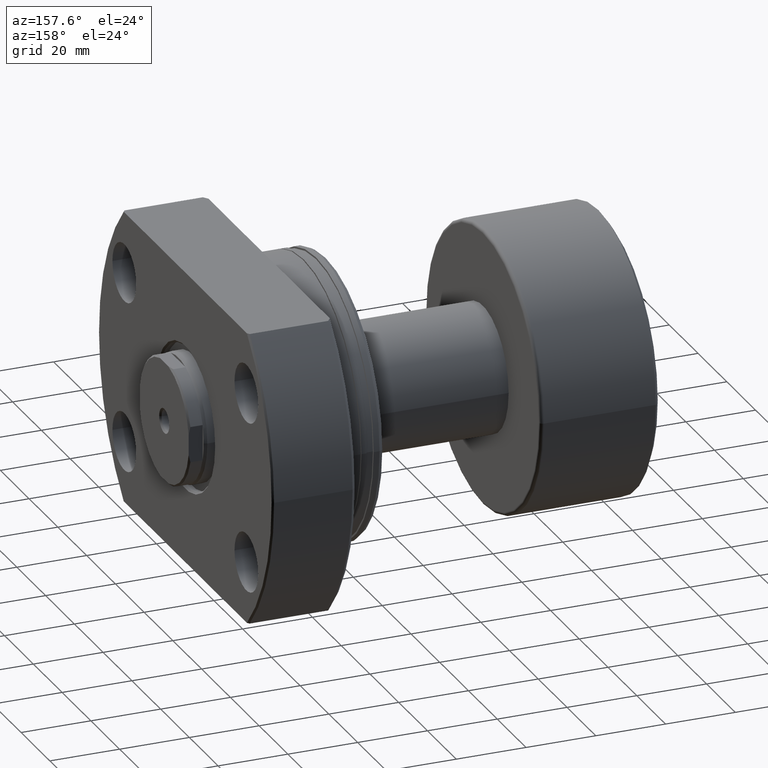
[diagram: clean part render]
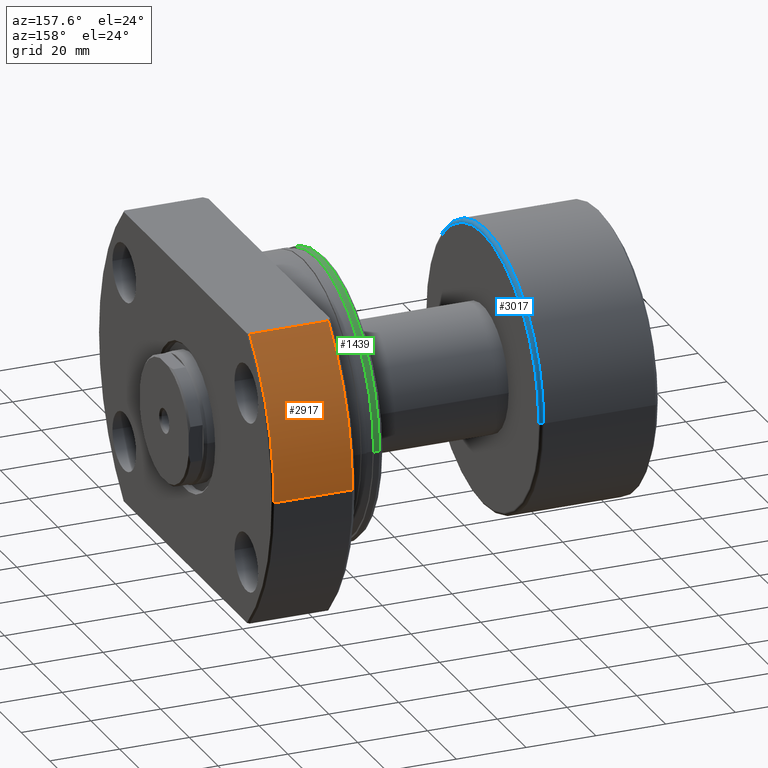
[diagram: same view with three faces highlighted in distinct colors, each labeled with its STEP entity id]
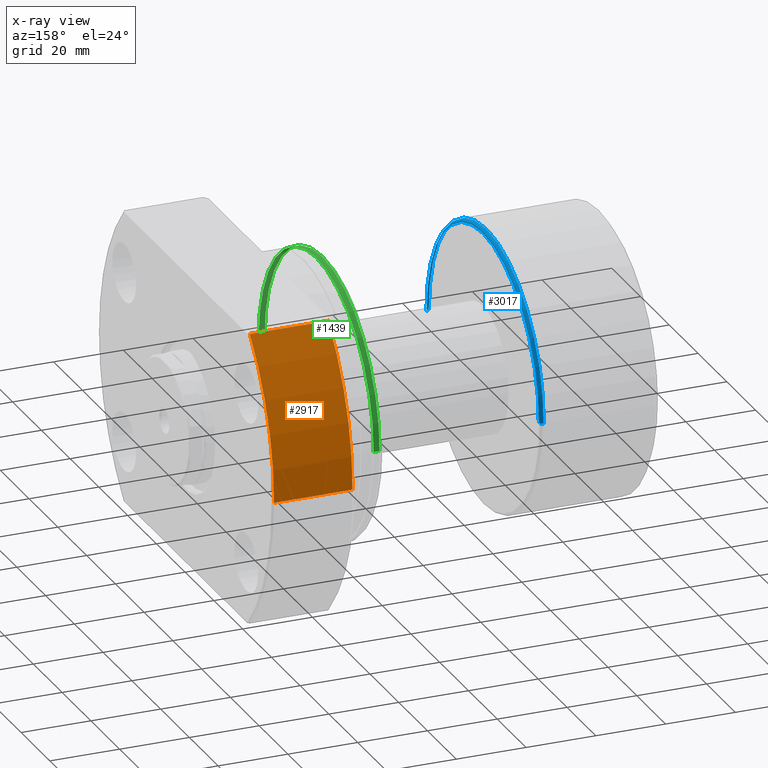
[diagram: x-ray of the same camera — body ghosted, the three highlighted faces saturated]
A machine part, auxiliary view with three faces highlighted in distinct colors.
The next image is the same camera in x-ray (body ghosted, the three faces saturated) — at least one of them is partly hidden behind the body in this view.
Their STEP definitions:

[orange] entity #2917 — the highlighted cylindrical surface (partial cylindrical patch) has radius 60.5 mm, axis along (1, 0, 0).
#43 = CARTESIAN_POINT ( 'NONE',  ( -4.857225732735059864E-13, 43.54595273960703139, 42.00000000000000000 ) ) ;
#77 = ORIENTED_EDGE ( 'NONE', *, *, #2205, .T. ) ;
#198 = VERTEX_POINT ( 'NONE', #1847 ) ;
#228 = AXIS2_PLACEMENT_3D ( 'NONE', #2337, #370, #3147 ) ;
#285 = CARTESIAN_POINT ( 'NONE',  ( 40.20000000000000284, 60.49999999999991473, 0.000000000000000000 ) ) ;
#330 = CIRCLE ( 'NONE', #483, 60.49999999999991473 ) ;
#370 = DIRECTION ( 'NONE',  ( 1.000000000000000000, 4.782824563834189405E-17, -0.000000000000000000 ) ) ;
#453 = DIRECTION ( 'NONE',  ( 0.000000000000000000, 1.000000000000000000, 0.000000000000000000 ) ) ;
#477 = DIRECTION ( 'NONE',  ( 1.000000000000000000, -2.886466111666351885E-14, -0.000000000000000000 ) ) ;
#483 = AXIS2_PLACEMENT_3D ( 'NONE', #1478, #1982, #453 ) ;
#601 = ORIENTED_EDGE ( 'NONE', *, *, #2960, .F. ) ;
#861 = EDGE_CURVE ( 'NONE', #2720, #198, #888, .T. ) ;
#888 = CIRCLE ( 'NONE', #2701, 60.49999999999991473 ) ;
#893 = VERTEX_POINT ( 'NONE', #1412 ) ;
#1089 = CYLINDRICAL_SURFACE ( 'NONE', #228, 60.49999999999991473 ) ;
#1143 = FACE_OUTER_BOUND ( 'NONE', #2264, .T. ) ;
#1361 = ORIENTED_EDGE ( 'NONE', *, *, #2209, .F. ) ;
#1412 = CARTESIAN_POINT ( 'NONE',  ( 39.70000000000009521, 60.49999999999991473, 0.000000000000000000 ) ) ;
#1478 = CARTESIAN_POINT ( 'NONE',  ( 39.70000000000009521, 1.898781351842177780E-15, 0.000000000000000000 ) ) ;
#1505 = LINE ( 'NONE', #285, #2700 ) ;
#1590 = CARTESIAN_POINT ( 'NONE',  ( 39.70000000000009521, 43.54595273960588742, 42.00000000000000000 ) ) ;
#1847 = CARTESIAN_POINT ( 'NONE',  ( 17.19999999999998153, 43.54595273960653401, 42.00000000000000000 ) ) ;
#1979 = VERTEX_POINT ( 'NONE', #1590 ) ;
#1982 = DIRECTION ( 'NONE',  ( 1.000000000000000000, 4.782824563834189405E-17, -0.000000000000000000 ) ) ;
#2100 = VECTOR ( 'NONE', #477, 1000.000000000000000 ) ;
#2205 = EDGE_CURVE ( 'NONE', #198, #1979, #2693, .T. ) ;
#2209 = EDGE_CURVE ( 'NONE', #2720, #893, #1505, .T. ) ;
#2264 = EDGE_LOOP ( 'NONE', ( #1361, #2663, #77, #601 ) ) ;
#2337 = CARTESIAN_POINT ( 'NONE',  ( 40.20000000000000284, 1.922695474661343877E-15, 0.000000000000000000 ) ) ;
#2431 = DIRECTION ( 'NONE',  ( -5.734623061080362048E-17, 1.000000000000000000, 0.000000000000000000 ) ) ;
#2494 = DIRECTION ( 'NONE',  ( 1.000000000000000000, 4.782824563834189405E-17, -0.000000000000000000 ) ) ;
#2663 = ORIENTED_EDGE ( 'NONE', *, *, #861, .T. ) ;
#2693 = LINE ( 'NONE', #43, #2100 ) ;
#2700 = VECTOR ( 'NONE', #2494, 1000.000000000000000 ) ;
#2701 = AXIS2_PLACEMENT_3D ( 'NONE', #2851, #2891, #2431 ) ;
#2720 = VERTEX_POINT ( 'NONE', #2997 ) ;
#2851 = CARTESIAN_POINT ( 'NONE',  ( 17.19999999999998508, 8.226458249794798825E-16, 0.000000000000000000 ) ) ;
#2891 = DIRECTION ( 'NONE',  ( 1.000000000000000000, 4.782824563834189405E-17, -0.000000000000000000 ) ) ;
#2917 = ADVANCED_FACE ( 'NONE', ( #1143 ), #1089, .T. ) ;
#2960 = EDGE_CURVE ( 'NONE', #893, #1979, #330, .T. ) ;
#2997 = CARTESIAN_POINT ( 'NONE',  ( 17.19999999999998153, 60.49999999999991473, 0.000000000000000000 ) ) ;
#3147 = DIRECTION ( 'NONE',  ( 0.000000000000000000, 1.000000000000000000, 0.000000000000000000 ) ) ;

[blue] entity #3017 — the highlighted toroidal blend (fillet) surface has major radius 39 mm and minor (blend) radius 1 mm.
#98 = EDGE_CURVE ( 'NONE', #3018, #1945, #1075, .T. ) ;
#120 = DIRECTION ( 'NONE',  ( 0.000000000000000000, 0.000000000000000000, -1.000000000000000000 ) ) ;
#542 = EDGE_CURVE ( 'NONE', #1906, #2793, #1080, .T. ) ;
#696 = CARTESIAN_POINT ( 'NONE',  ( 33.70000000000000284, 0.000000000000000000, 0.000000000000000000 ) ) ;
#729 = DIRECTION ( 'NONE',  ( 1.069542322069065801E-17, -1.000000000000000000, 0.000000000000000000 ) ) ;
#787 = EDGE_LOOP ( 'NONE', ( #2735, #1468, #1711, #1402 ) ) ;
#915 = DIRECTION ( 'NONE',  ( -1.000000000000000000, -1.069542322069065801E-17, -0.000000000000000000 ) ) ;
#1039 = EDGE_CURVE ( 'NONE', #2793, #1945, #1087, .T. ) ;
#1075 = CIRCLE ( 'NONE', #3059, 1.000000000000000888 ) ;
#1080 = CIRCLE ( 'NONE', #1946, 1.000000000000000888 ) ;
#1087 = CIRCLE ( 'NONE', #2610, 39.99999999999999289 ) ;
#1216 = DIRECTION ( 'NONE',  ( -1.000000000000000000, -1.069542322069065801E-17, -0.000000000000000000 ) ) ;
#1248 = AXIS2_PLACEMENT_3D ( 'NONE', #3081, #1272, #2542 ) ;
#1255 = EDGE_CURVE ( 'NONE', #1906, #3018, #1625, .T. ) ;
#1272 = DIRECTION ( 'NONE',  ( -1.000000000000000000, -1.069542322069065801E-17, -0.000000000000000000 ) ) ;
#1321 = CARTESIAN_POINT ( 'NONE',  ( 33.70000000000000284, -39.99999999999999289, 0.000000000000000000 ) ) ;
#1402 = ORIENTED_EDGE ( 'NONE', *, *, #542, .F. ) ;
#1468 = ORIENTED_EDGE ( 'NONE', *, *, #98, .T. ) ;
#1625 = CIRCLE ( 'NONE', #1248, 38.99999999999999289 ) ;
#1711 = ORIENTED_EDGE ( 'NONE', *, *, #1039, .F. ) ;
#1871 = DIRECTION ( 'NONE',  ( 0.000000000000000000, -1.000000000000000000, -1.224646799147357151E-16 ) ) ;
#1906 = VERTEX_POINT ( 'NONE', #2615 ) ;
#1945 = VERTEX_POINT ( 'NONE', #3100 ) ;
#1946 = AXIS2_PLACEMENT_3D ( 'NONE', #2772, #120, #3090 ) ;
#1998 = FACE_OUTER_BOUND ( 'NONE', #787, .T. ) ;
#2356 = TOROIDAL_SURFACE ( 'NONE', #2760, 38.99999999999999289, 1.000000000000000888 ) ;
#2468 = CARTESIAN_POINT ( 'NONE',  ( 33.70000000000000284, 3.604357625372751759E-16, 0.000000000000000000 ) ) ;
#2542 = DIRECTION ( 'NONE',  ( 0.000000000000000000, -1.000000000000000000, 0.000000000000000000 ) ) ;
#2610 = AXIS2_PLACEMENT_3D ( 'NONE', #2468, #1216, #2681 ) ;
#2615 = CARTESIAN_POINT ( 'NONE',  ( 34.70000000000000284, -38.99999999999999289, 0.000000000000000000 ) ) ;
#2626 = DIRECTION ( 'NONE',  ( 1.309811581274509052E-33, -1.224646799147353207E-16, 1.000000000000000000 ) ) ;
#2641 = CARTESIAN_POINT ( 'NONE',  ( 34.70000000000000284, 38.99999999999999289, 4.837354856632044663E-15 ) ) ;
#2681 = DIRECTION ( 'NONE',  ( 0.000000000000000000, -1.000000000000000000, 0.000000000000000000 ) ) ;
#2735 = ORIENTED_EDGE ( 'NONE', *, *, #1255, .T. ) ;
#2760 = AXIS2_PLACEMENT_3D ( 'NONE', #696, #915, #729 ) ;
#2772 = CARTESIAN_POINT ( 'NONE',  ( 33.70000000000000284, -38.99999999999999289, 0.000000000000000000 ) ) ;
#2793 = VERTEX_POINT ( 'NONE', #1321 ) ;
#3017 = ADVANCED_FACE ( 'NONE', ( #1998 ), #2356, .T. ) ;
#3018 = VERTEX_POINT ( 'NONE', #2641 ) ;
#3059 = AXIS2_PLACEMENT_3D ( 'NONE', #3156, #2626, #1871 ) ;
#3081 = CARTESIAN_POINT ( 'NONE',  ( 34.70000000000000284, 3.711311857579658694E-16, 0.000000000000000000 ) ) ;
#3090 = DIRECTION ( 'NONE',  ( -1.000000000000000000, 0.000000000000000000, 0.000000000000000000 ) ) ;
#3100 = CARTESIAN_POINT ( 'NONE',  ( 33.70000000000000284, 39.99999999999999289, 4.898587196589412237E-15 ) ) ;
#3156 = CARTESIAN_POINT ( 'NONE',  ( 33.70000000000000284, 38.99999999999999289, 4.776122516674677089E-15 ) ) ;

[green] entity #1439 — the highlighted cylindrical surface (partial cylindrical patch) has radius 40 mm, axis along (1, 0, 0).
#32 = DIRECTION ( 'NONE',  ( 1.000000000000000000, 4.782824563834189405E-17, -0.000000000000000000 ) ) ;
#151 = LINE ( 'NONE', #1305, #427 ) ;
#240 = LINE ( 'NONE', #2239, #3065 ) ;
#427 = VECTOR ( 'NONE', #3023, 1000.000000000000000 ) ;
#541 = CARTESIAN_POINT ( 'NONE',  ( 40.20000000000000284, 1.922695474661343877E-15, 0.000000000000000000 ) ) ;
#557 = DIRECTION ( 'NONE',  ( 0.000000000000000000, 1.000000000000000000, 0.000000000000000000 ) ) ;
#651 = VERTEX_POINT ( 'NONE', #1393 ) ;
#666 = VERTEX_POINT ( 'NONE', #946 ) ;
#756 = EDGE_CURVE ( 'NONE', #1663, #1591, #151, .T. ) ;
#840 = DIRECTION ( 'NONE',  ( -4.336808689942017736E-17, 1.000000000000000000, 0.000000000000000000 ) ) ;
#932 = ORIENTED_EDGE ( 'NONE', *, *, #3157, .T. ) ;
#946 = CARTESIAN_POINT ( 'NONE',  ( 2.699999999999784350, 40.00000000000000000, 0.000000000000000000 ) ) ;
#987 = DIRECTION ( 'NONE',  ( 1.000000000000000000, 4.782824563834189405E-17, -0.000000000000000000 ) ) ;
#1096 = CARTESIAN_POINT ( 'NONE',  ( 2.699999999999787459, -40.00000000000000000, 4.898587196589413026E-15 ) ) ;
#1229 = EDGE_LOOP ( 'NONE', ( #932, #2888, #2538, #2286 ) ) ;
#1305 = CARTESIAN_POINT ( 'NONE',  ( 40.20000000000000284, -39.99999999999999289, 4.898587196589412237E-15 ) ) ;
#1393 = CARTESIAN_POINT ( 'NONE',  ( 0.9999999999997907230, 39.99999999999999289, 0.000000000000000000 ) ) ;
#1439 = ADVANCED_FACE ( 'NONE', ( #2778 ), #2515, .T. ) ;
#1591 = VERTEX_POINT ( 'NONE', #1096 ) ;
#1658 = EDGE_CURVE ( 'NONE', #666, #1591, #2746, .T. ) ;
#1663 = VERTEX_POINT ( 'NONE', #2336 ) ;
#1887 = EDGE_CURVE ( 'NONE', #651, #666, #240, .T. ) ;
#2239 = CARTESIAN_POINT ( 'NONE',  ( 40.20000000000000284, 39.99999999999999289, 0.000000000000000000 ) ) ;
#2285 = DIRECTION ( 'NONE',  ( -4.878909776184770569E-17, 1.000000000000000000, 0.000000000000000000 ) ) ;
#2286 = ORIENTED_EDGE ( 'NONE', *, *, #1887, .F. ) ;
#2336 = CARTESIAN_POINT ( 'NONE',  ( 0.9999999999997947198, -39.99999999999999289, 4.898587196589412237E-15 ) ) ;
#2463 = AXIS2_PLACEMENT_3D ( 'NONE', #2731, #2980, #2285 ) ;
#2501 = AXIS2_PLACEMENT_3D ( 'NONE', #541, #32, #557 ) ;
#2515 = CYLINDRICAL_SURFACE ( 'NONE', #2501, 39.99999999999999289 ) ;
#2538 = ORIENTED_EDGE ( 'NONE', *, *, #1658, .F. ) ;
#2572 = DIRECTION ( 'NONE',  ( 1.000000000000000000, 4.782824563834189405E-17, -0.000000000000000000 ) ) ;
#2662 = CIRCLE ( 'NONE', #2463, 39.99999999999999289 ) ;
#2731 = CARTESIAN_POINT ( 'NONE',  ( 0.9999999999997927214, 4.782824563833174979E-17, 0.000000000000000000 ) ) ;
#2746 = CIRCLE ( 'NONE', #2916, 40.00000000000000000 ) ;
#2778 = FACE_OUTER_BOUND ( 'NONE', #1229, .T. ) ;
#2888 = ORIENTED_EDGE ( 'NONE', *, *, #756, .T. ) ;
#2916 = AXIS2_PLACEMENT_3D ( 'NONE', #3192, #2572, #840 ) ;
#2980 = DIRECTION ( 'NONE',  ( 1.000000000000000000, 4.782824563834189405E-17, -0.000000000000000000 ) ) ;
#3023 = DIRECTION ( 'NONE',  ( 1.000000000000000000, 4.782824563834189405E-17, -0.000000000000000000 ) ) ;
#3065 = VECTOR ( 'NONE', #987, 1000.000000000000000 ) ;
#3157 = EDGE_CURVE ( 'NONE', #651, #1663, #2662, .T. ) ;
#3192 = CARTESIAN_POINT ( 'NONE',  ( 2.699999999999786127, 1.291362632235127737E-16, 0.000000000000000000 ) ) ;